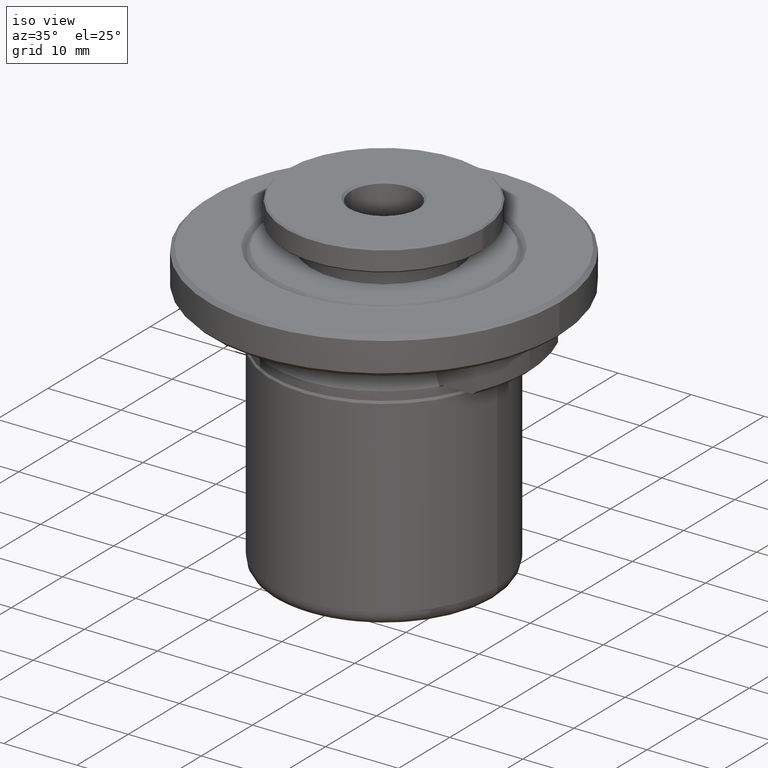
[diagram: clean part render]
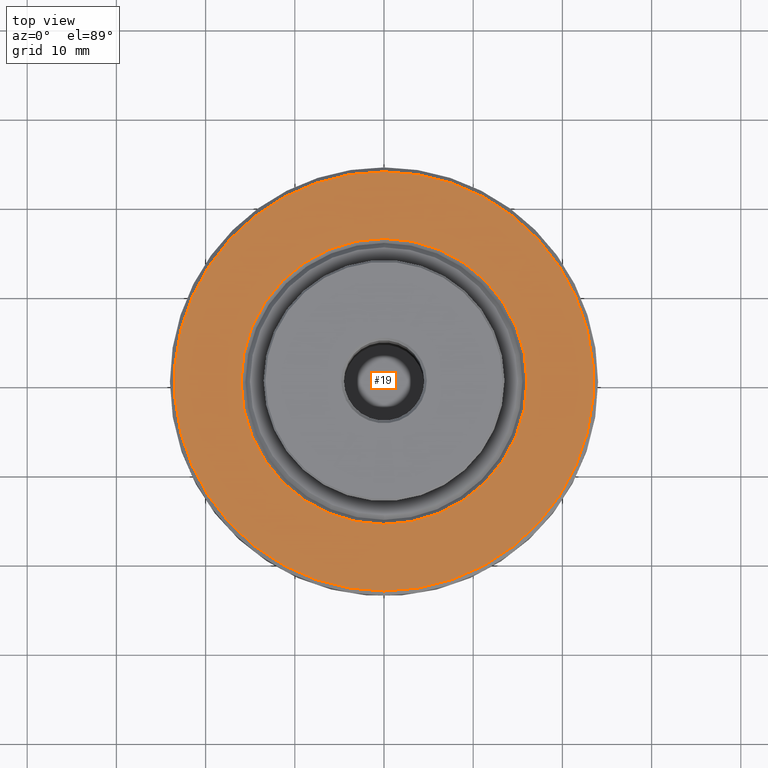
[diagram: tour spotlight — one face highlighted and labeled with its STEP entity id]
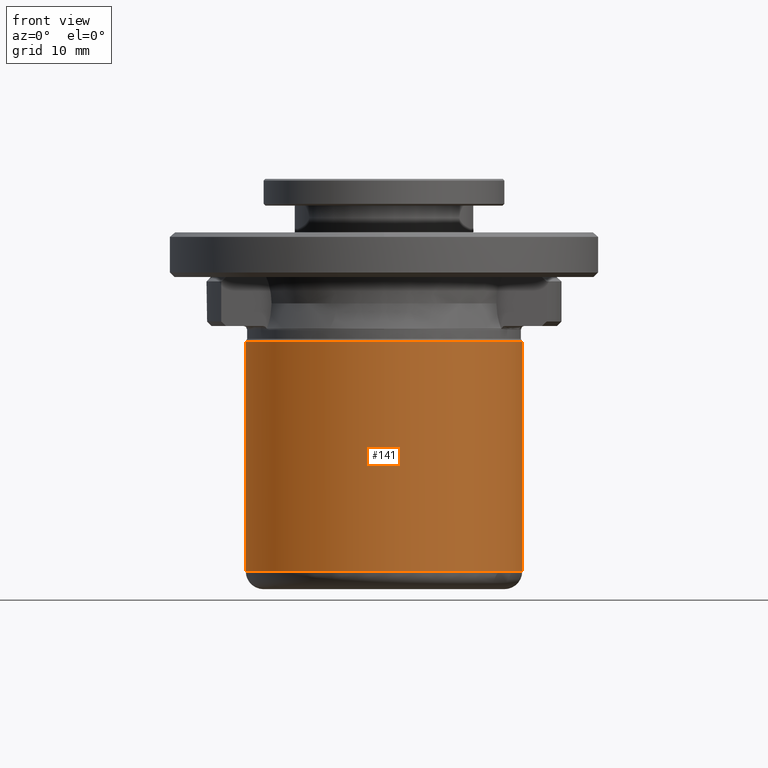
[diagram: tour spotlight — one face highlighted and labeled with its STEP entity id]
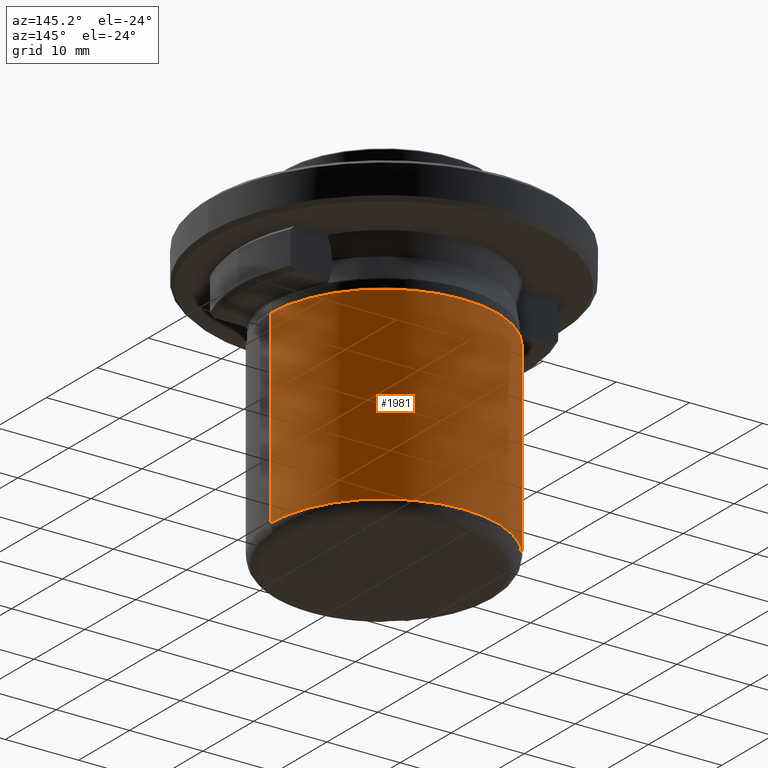
[diagram: tour spotlight — one face highlighted and labeled with its STEP entity id]
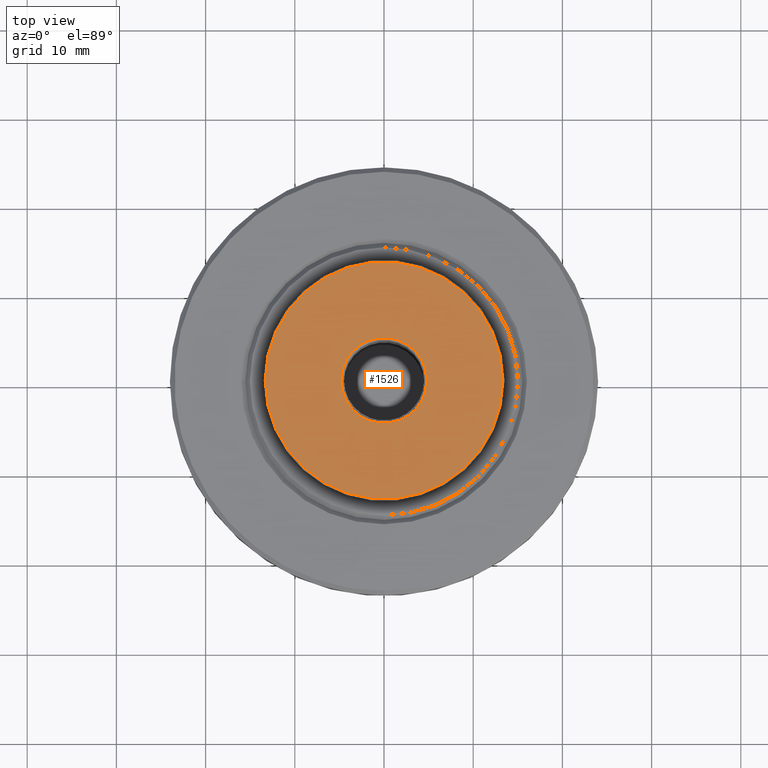
[diagram: tour spotlight — one face highlighted and labeled with its STEP entity id]
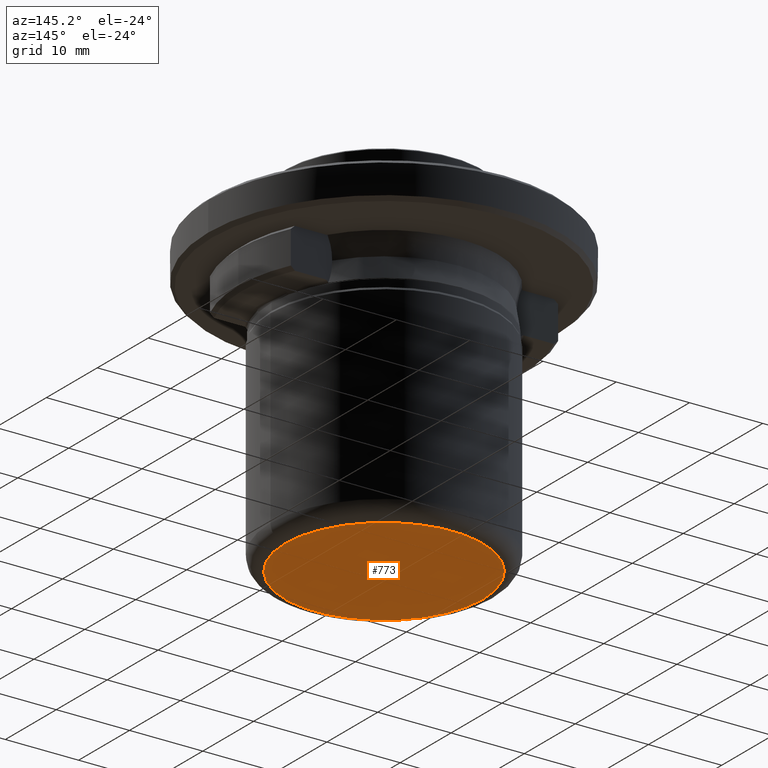
[diagram: tour spotlight — one face highlighted and labeled with its STEP entity id]
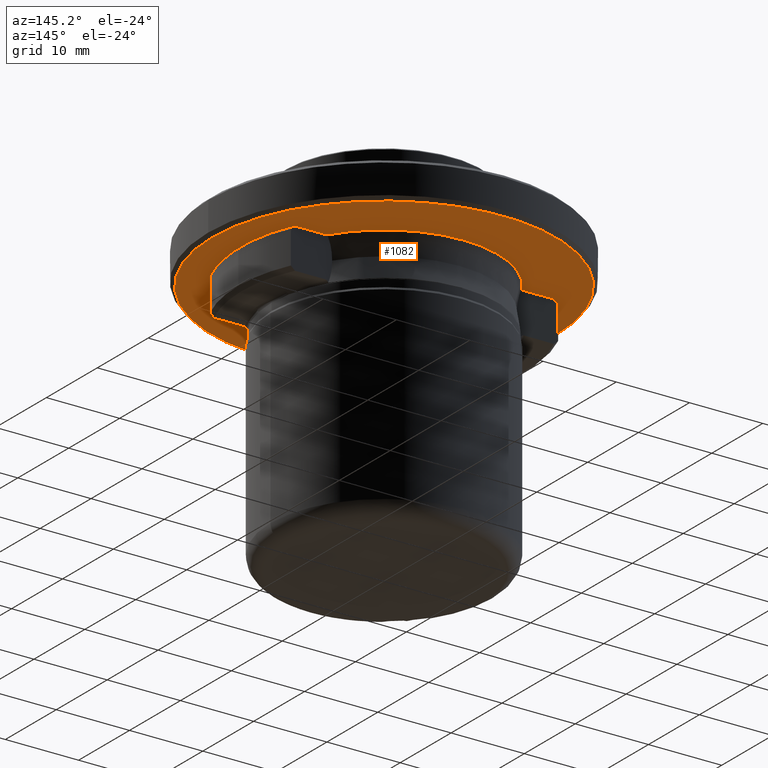
[diagram: tour spotlight — one face highlighted and labeled with its STEP entity id]
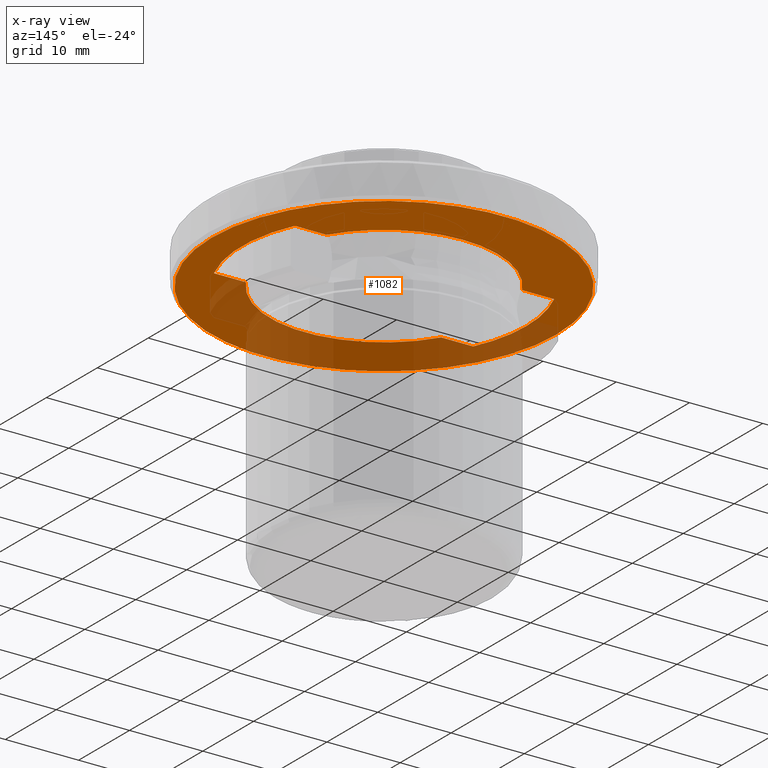
[diagram: x-ray of the same camera — body ghosted, this tour face saturated]
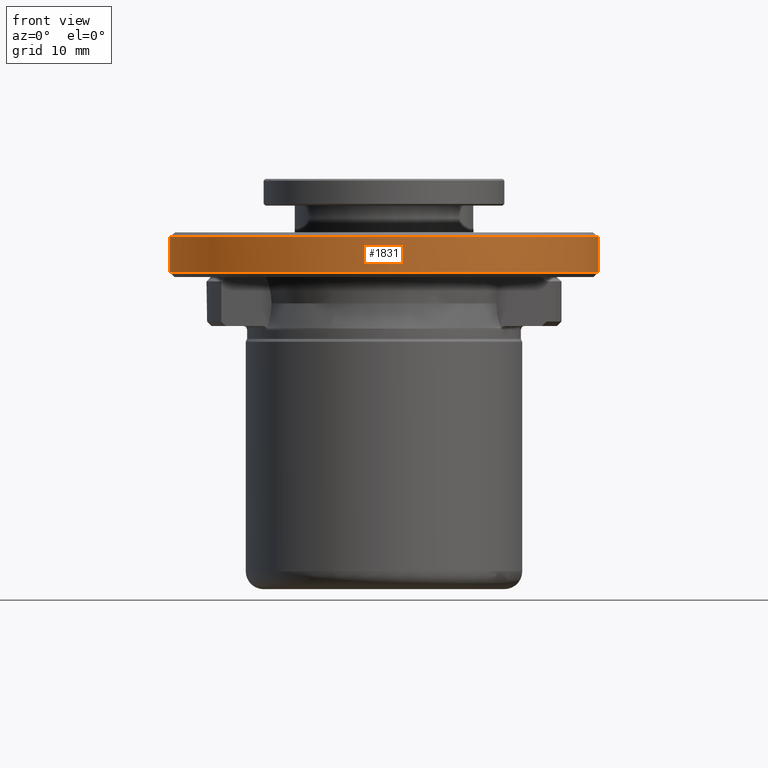
[diagram: tour spotlight — one face highlighted and labeled with its STEP entity id]
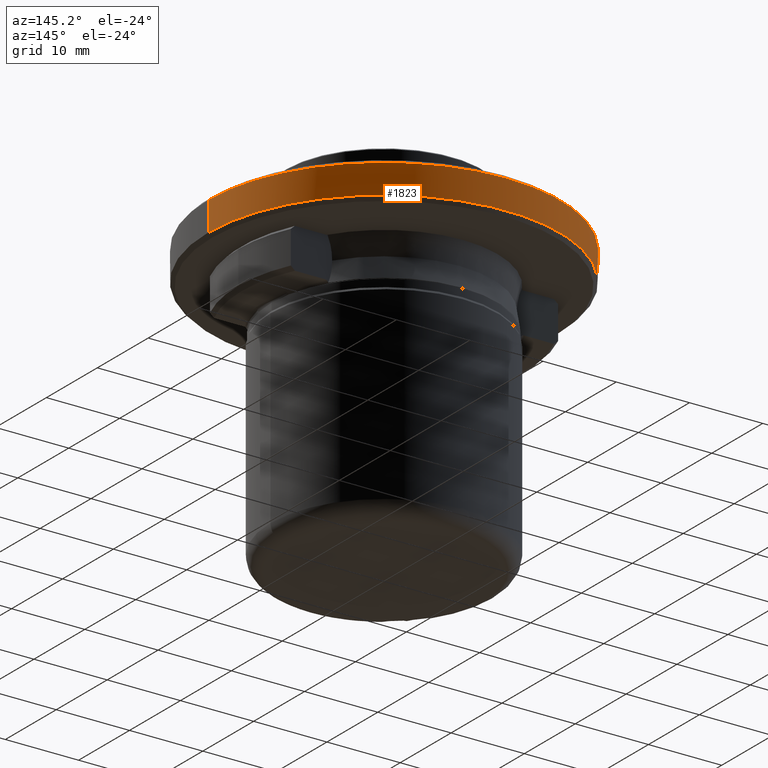
[diagram: tour spotlight — one face highlighted and labeled with its STEP entity id]
A machine part: a face-by-face anatomy tour. The part has 61 B-rep faces; the first image is the clean iso view, then the 8 largest visible faces are spotlighted one at a time (largest first), each with its STEP entity span.

Face 1 — top view, entity #19. In plain terms, the highlighted planar face has unit normal (0, 0, 1).
Definition (entity closure, byte-faithful):
#19 = ADVANCED_FACE ( 'NONE', ( #1107, #1920 ), #830, .T. ) ;
#40 = CIRCLE ( 'NONE', #1694, 16.02500000000004500 ) ;
#46 = DIRECTION ( 'NONE',  ( -0.0000000000000000000, 0.0000000000000000000, -1.000000000000000000 ) ) ;
#67 = VERTEX_POINT ( 'NONE', #400 ) ;
#125 = CIRCLE ( 'NONE', #1824, 16.02500000000004500 ) ;
#135 = ORIENTED_EDGE ( 'NONE', *, *, #237, .T. ) ;
#178 = CARTESIAN_POINT ( 'NONE',  ( -23.78199999999999600, -23.78199999999999600, 12.43848561500000100 ) ) ;
#237 = EDGE_CURVE ( 'NONE', #380, #67, #519, .T. ) ;
#238 = ORIENTED_EDGE ( 'NONE', *, *, #1051, .T. ) ;
#275 = ORIENTED_EDGE ( 'NONE', *, *, #1252, .T. ) ;
#320 = CARTESIAN_POINT ( 'NONE',  ( 0.0000000000000000000, 0.0000000000000000000, 12.43848561500005100 ) ) ;
#380 = VERTEX_POINT ( 'NONE', #1878 ) ;
#400 = CARTESIAN_POINT ( 'NONE',  ( 0.0000000000000000000, 23.49999999999995000, 12.43848561500005100 ) ) ;
#519 = CIRCLE ( 'NONE', #916, 23.49999999999995000 ) ;
#538 = DIRECTION ( 'NONE',  ( 1.000000000000000000, 0.0000000000000000000, 0.0000000000000000000 ) ) ;
#543 = EDGE_LOOP ( 'NONE', ( #275, #135 ) ) ;
#548 = EDGE_CURVE ( 'NONE', #669, #616, #40, .T. ) ;
#616 = VERTEX_POINT ( 'NONE', #1738 ) ;
#650 = CIRCLE ( 'NONE', #1886, 23.49999999999995000 ) ;
#661 = CARTESIAN_POINT ( 'NONE',  ( 0.0000000000000000000, 1.792753937581369100E-030, 12.43848561500005100 ) ) ;
#669 = VERTEX_POINT ( 'NONE', #1142 ) ;
#804 = EDGE_LOOP ( 'NONE', ( #238, #1928 ) ) ;
#811 = DIRECTION ( 'NONE',  ( -0.0000000000000000000, 3.690901012716610800E-017, 1.000000000000000000 ) ) ;
#830 = PLANE ( 'NONE',  #1045 ) ;
#916 = AXIS2_PLACEMENT_3D ( 'NONE', #661, #811, #1102 ) ;
#951 = CARTESIAN_POINT ( 'NONE',  ( 0.0000000000000000000, 0.0000000000000000000, 12.43848561500005100 ) ) ;
#1040 = DIRECTION ( 'NONE',  ( 0.0000000000000000000, 1.000000000000000000, 0.0000000000000000000 ) ) ;
#1045 = AXIS2_PLACEMENT_3D ( 'NONE', #178, #1383, #538 ) ;
#1051 = EDGE_CURVE ( 'NONE', #616, #669, #125, .T. ) ;
#1102 = DIRECTION ( 'NONE',  ( 0.0000000000000000000, 1.000000000000000000, 0.0000000000000000000 ) ) ;
#1107 = FACE_BOUND ( 'NONE', #804, .T. ) ;
#1142 = CARTESIAN_POINT ( 'NONE',  ( -16.02500000000004500, 1.962496495633639600E-015, 12.43848561500005100 ) ) ;
#1252 = EDGE_CURVE ( 'NONE', #67, #380, #650, .T. ) ;
#1255 = DIRECTION ( 'NONE',  ( 1.000000000000000000, 0.0000000000000000000, 0.0000000000000000000 ) ) ;
#1334 = DIRECTION ( 'NONE',  ( -0.0000000000000000000, 0.0000000000000000000, -1.000000000000000000 ) ) ;
#1359 = CARTESIAN_POINT ( 'NONE',  ( 0.0000000000000000000, 1.792753937581369100E-030, 12.43848561500005100 ) ) ;
#1383 = DIRECTION ( 'NONE',  ( 0.0000000000000000000, 0.0000000000000000000, 1.000000000000000000 ) ) ;
#1539 = DIRECTION ( 'NONE',  ( 1.000000000000000000, 0.0000000000000000000, 0.0000000000000000000 ) ) ;
#1661 = DIRECTION ( 'NONE',  ( -0.0000000000000000000, 3.690901012716610800E-017, 1.000000000000000000 ) ) ;
#1694 = AXIS2_PLACEMENT_3D ( 'NONE', #320, #1334, #1539 ) ;
#1738 = CARTESIAN_POINT ( 'NONE',  ( 16.02500000000004500, 0.0000000000000000000, 12.43848561500005100 ) ) ;
#1824 = AXIS2_PLACEMENT_3D ( 'NONE', #951, #46, #1255 ) ;
#1878 = CARTESIAN_POINT ( 'NONE',  ( 2.908536147974961000E-015, -23.49999999999995000, 12.43848561500005100 ) ) ;
#1886 = AXIS2_PLACEMENT_3D ( 'NONE', #1359, #1661, #1040 ) ;
#1920 = FACE_OUTER_BOUND ( 'NONE', #543, .T. ) ;
#1928 = ORIENTED_EDGE ( 'NONE', *, *, #548, .T. ) ;

Face 2 — front view, entity #141. In plain terms, the highlighted cylindrical surface (partial cylindrical patch) has radius 15.5 mm, axis along (0, -0, 1).
Definition (entity closure, byte-faithful):
#68 = VERTEX_POINT ( 'NONE', #233 ) ;
#77 = DIRECTION ( 'NONE',  ( 0.0000000000000000000, -0.0000000000000000000, 1.000000000000000000 ) ) ;
#98 = AXIS2_PLACEMENT_3D ( 'NONE', #1897, #785, #1079 ) ;
#141 = ADVANCED_FACE ( 'NONE', ( #1776 ), #564, .T. ) ;
#233 = CARTESIAN_POINT ( 'NONE',  ( 15.50000000000000000, 0.0000000000000000000, 0.1784856150000013700 ) ) ;
#236 = CARTESIAN_POINT ( 'NONE',  ( 15.50000000000000000, 0.0000000000000000000, -25.56151438499999900 ) ) ;
#311 = CARTESIAN_POINT ( 'NONE',  ( 0.0000000000000000000, 0.0000000000000000000, -25.56151438499999900 ) ) ;
#421 = LINE ( 'NONE', #540, #1183 ) ;
#430 = EDGE_CURVE ( 'NONE', #486, #68, #1341, .T. ) ;
#436 = ORIENTED_EDGE ( 'NONE', *, *, #1881, .T. ) ;
#465 = DIRECTION ( 'NONE',  ( 1.000000000000000000, 0.0000000000000000000, 0.0000000000000000000 ) ) ;
#486 = VERTEX_POINT ( 'NONE', #236 ) ;
#532 = AXIS2_PLACEMENT_3D ( 'NONE', #697, #615, #765 ) ;
#540 = CARTESIAN_POINT ( 'NONE',  ( -15.50000000000000000, 1.898202538678397600E-015, -18.26487427900000100 ) ) ;
#547 = AXIS2_PLACEMENT_3D ( 'NONE', #311, #1367, #465 ) ;
#564 = CYLINDRICAL_SURFACE ( 'NONE', #98, 15.50000000000000000 ) ;
#615 = DIRECTION ( 'NONE',  ( 0.0000000000000000000, 0.0000000000000000000, -1.000000000000000000 ) ) ;
#638 = VERTEX_POINT ( 'NONE', #1790 ) ;
#663 = EDGE_CURVE ( 'NONE', #68, #638, #696, .T. ) ;
#696 = CIRCLE ( 'NONE', #532, 15.50000000000000000 ) ;
#697 = CARTESIAN_POINT ( 'NONE',  ( 0.0000000000000000000, 0.0000000000000000000, 0.1784856150000013700 ) ) ;
#752 = ORIENTED_EDGE ( 'NONE', *, *, #663, .T. ) ;
#765 = DIRECTION ( 'NONE',  ( -1.000000000000000000, 0.0000000000000000000, -8.743565907141165300E-017 ) ) ;
#785 = DIRECTION ( 'NONE',  ( 0.0000000000000000000, -0.0000000000000000000, 1.000000000000000000 ) ) ;
#793 = EDGE_LOOP ( 'NONE', ( #829, #436, #841, #752 ) ) ;
#829 = ORIENTED_EDGE ( 'NONE', *, *, #883, .F. ) ;
#841 = ORIENTED_EDGE ( 'NONE', *, *, #430, .T. ) ;
#883 = EDGE_CURVE ( 'NONE', #1931, #638, #421, .T. ) ;
#885 = CARTESIAN_POINT ( 'NONE',  ( 15.50000000000000000, 0.0000000000000000000, -18.26487427900000100 ) ) ;
#942 = VECTOR ( 'NONE', #1422, 1000.000000000000000 ) ;
#1074 = CARTESIAN_POINT ( 'NONE',  ( -15.50000000000000000, 1.898202538678397600E-015, -25.56151438499999900 ) ) ;
#1079 = DIRECTION ( 'NONE',  ( 1.000000000000000000, 0.0000000000000000000, 0.0000000000000000000 ) ) ;
#1183 = VECTOR ( 'NONE', #77, 1000.000000000000000 ) ;
#1341 = LINE ( 'NONE', #885, #942 ) ;
#1367 = DIRECTION ( 'NONE',  ( 0.0000000000000000000, 0.0000000000000000000, 1.000000000000000000 ) ) ;
#1422 = DIRECTION ( 'NONE',  ( 0.0000000000000000000, -0.0000000000000000000, 1.000000000000000000 ) ) ;
#1655 = CIRCLE ( 'NONE', #547, 15.50000000000000000 ) ;
#1776 = FACE_OUTER_BOUND ( 'NONE', #793, .T. ) ;
#1790 = CARTESIAN_POINT ( 'NONE',  ( -15.50000000000000000, 1.898202538678397600E-015, 0.1784856150000013700 ) ) ;
#1881 = EDGE_CURVE ( 'NONE', #1931, #486, #1655, .T. ) ;
#1897 = CARTESIAN_POINT ( 'NONE',  ( 0.0000000000000000000, 0.0000000000000000000, -18.26487427900000100 ) ) ;
#1931 = VERTEX_POINT ( 'NONE', #1074 ) ;

Face 3 — auxiliary view, entity #1981. In plain terms, the highlighted cylindrical surface (partial cylindrical patch) has radius 15.5 mm, axis along (0, -0, 1).
Definition (entity closure, byte-faithful):
#68 = VERTEX_POINT ( 'NONE', #233 ) ;
#77 = DIRECTION ( 'NONE',  ( 0.0000000000000000000, -0.0000000000000000000, 1.000000000000000000 ) ) ;
#227 = CARTESIAN_POINT ( 'NONE',  ( 0.0000000000000000000, 0.0000000000000000000, -25.56151438499999900 ) ) ;
#233 = CARTESIAN_POINT ( 'NONE',  ( 15.50000000000000000, 0.0000000000000000000, 0.1784856150000013700 ) ) ;
#236 = CARTESIAN_POINT ( 'NONE',  ( 15.50000000000000000, 0.0000000000000000000, -25.56151438499999900 ) ) ;
#289 = AXIS2_PLACEMENT_3D ( 'NONE', #431, #1299, #1324 ) ;
#324 = DIRECTION ( 'NONE',  ( 1.000000000000000000, 0.0000000000000000000, 0.0000000000000000000 ) ) ;
#353 = ORIENTED_EDGE ( 'NONE', *, *, #883, .T. ) ;
#421 = LINE ( 'NONE', #540, #1183 ) ;
#430 = EDGE_CURVE ( 'NONE', #486, #68, #1341, .T. ) ;
#431 = CARTESIAN_POINT ( 'NONE',  ( 0.0000000000000000000, 0.0000000000000000000, 0.1784856150000013700 ) ) ;
#480 = CARTESIAN_POINT ( 'NONE',  ( 0.0000000000000000000, 0.0000000000000000000, -18.26487427900000100 ) ) ;
#486 = VERTEX_POINT ( 'NONE', #236 ) ;
#540 = CARTESIAN_POINT ( 'NONE',  ( -15.50000000000000000, 1.898202538678397600E-015, -18.26487427900000100 ) ) ;
#638 = VERTEX_POINT ( 'NONE', #1790 ) ;
#727 = ORIENTED_EDGE ( 'NONE', *, *, #1034, .T. ) ;
#743 = CYLINDRICAL_SURFACE ( 'NONE', #1260, 15.50000000000000000 ) ;
#774 = DIRECTION ( 'NONE',  ( 0.0000000000000000000, -0.0000000000000000000, 1.000000000000000000 ) ) ;
#865 = DIRECTION ( 'NONE',  ( 0.0000000000000000000, 0.0000000000000000000, 1.000000000000000000 ) ) ;
#883 = EDGE_CURVE ( 'NONE', #1931, #638, #421, .T. ) ;
#885 = CARTESIAN_POINT ( 'NONE',  ( 15.50000000000000000, 0.0000000000000000000, -18.26487427900000100 ) ) ;
#903 = ORIENTED_EDGE ( 'NONE', *, *, #910, .T. ) ;
#910 = EDGE_CURVE ( 'NONE', #638, #68, #1077, .T. ) ;
#942 = VECTOR ( 'NONE', #1422, 1000.000000000000000 ) ;
#1034 = EDGE_CURVE ( 'NONE', #486, #1931, #1388, .T. ) ;
#1074 = CARTESIAN_POINT ( 'NONE',  ( -15.50000000000000000, 1.898202538678397600E-015, -25.56151438499999900 ) ) ;
#1077 = CIRCLE ( 'NONE', #289, 15.50000000000000000 ) ;
#1183 = VECTOR ( 'NONE', #77, 1000.000000000000000 ) ;
#1200 = FACE_OUTER_BOUND ( 'NONE', #1588, .T. ) ;
#1260 = AXIS2_PLACEMENT_3D ( 'NONE', #480, #774, #324 ) ;
#1299 = DIRECTION ( 'NONE',  ( 0.0000000000000000000, 0.0000000000000000000, -1.000000000000000000 ) ) ;
#1324 = DIRECTION ( 'NONE',  ( -1.000000000000000000, 0.0000000000000000000, -8.743565907141165300E-017 ) ) ;
#1341 = LINE ( 'NONE', #885, #942 ) ;
#1388 = CIRCLE ( 'NONE', #1618, 15.50000000000000000 ) ;
#1422 = DIRECTION ( 'NONE',  ( 0.0000000000000000000, -0.0000000000000000000, 1.000000000000000000 ) ) ;
#1588 = EDGE_LOOP ( 'NONE', ( #727, #353, #903, #1879 ) ) ;
#1618 = AXIS2_PLACEMENT_3D ( 'NONE', #227, #865, #1732 ) ;
#1732 = DIRECTION ( 'NONE',  ( 1.000000000000000000, 0.0000000000000000000, 0.0000000000000000000 ) ) ;
#1790 = CARTESIAN_POINT ( 'NONE',  ( -15.50000000000000000, 1.898202538678397600E-015, 0.1784856150000013700 ) ) ;
#1879 = ORIENTED_EDGE ( 'NONE', *, *, #430, .F. ) ;
#1931 = VERTEX_POINT ( 'NONE', #1074 ) ;
#1981 = ADVANCED_FACE ( 'NONE', ( #1200 ), #743, .T. ) ;

Face 4 — top view, entity #1526. In plain terms, the highlighted planar face has unit normal (0, 0, 1).
Definition (entity closure, byte-faithful):
#24 = CARTESIAN_POINT ( 'NONE',  ( 4.800000001441873100, 0.0000000000000000000, 18.43848561500000100 ) ) ;
#50 = CARTESIAN_POINT ( 'NONE',  ( -13.29999999999999900, 0.0000000000000000000, 18.43848561499994400 ) ) ;
#90 = CARTESIAN_POINT ( 'NONE',  ( 0.0000000000000000000, 0.0000000000000000000, 18.43848561500000100 ) ) ;
#119 = EDGE_CURVE ( 'NONE', #660, #384, #1826, .T. ) ;
#154 = CIRCLE ( 'NONE', #1657, 13.29999999999999900 ) ;
#157 = CARTESIAN_POINT ( 'NONE',  ( 13.29999999999999900, 1.641026710857453300E-015, 18.43848561499994400 ) ) ;
#273 = FACE_BOUND ( 'NONE', #659, .T. ) ;
#309 = PLANE ( 'NONE',  #684 ) ;
#384 = VERTEX_POINT ( 'NONE', #50 ) ;
#550 = DIRECTION ( 'NONE',  ( 1.000000000000000000, 0.0000000000000000000, 0.0000000000000000000 ) ) ;
#589 = ORIENTED_EDGE ( 'NONE', *, *, #1460, .T. ) ;
#601 = CARTESIAN_POINT ( 'NONE',  ( 0.0000000000000000000, 0.0000000000000000000, 18.43848561499994400 ) ) ;
#641 = DIRECTION ( 'NONE',  ( -0.0000000000000000000, -0.0000000000000000000, -1.000000000000000000 ) ) ;
#659 = EDGE_LOOP ( 'NONE', ( #589, #1763 ) ) ;
#660 = VERTEX_POINT ( 'NONE', #157 ) ;
#672 = CARTESIAN_POINT ( 'NONE',  ( -4.800000001441873100, 5.878304637673080500E-016, 18.43848561500000100 ) ) ;
#684 = AXIS2_PLACEMENT_3D ( 'NONE', #1926, #1695, #550 ) ;
#689 = DIRECTION ( 'NONE',  ( 1.000000000000000000, 0.0000000000000000000, 0.0000000000000000000 ) ) ;
#718 = FACE_OUTER_BOUND ( 'NONE', #1683, .T. ) ;
#728 = DIRECTION ( 'NONE',  ( 1.000000000000000000, 0.0000000000000000000, 0.0000000000000000000 ) ) ;
#786 = EDGE_CURVE ( 'NONE', #384, #660, #154, .T. ) ;
#790 = CARTESIAN_POINT ( 'NONE',  ( 0.0000000000000000000, 0.0000000000000000000, 18.43848561500000100 ) ) ;
#863 = CIRCLE ( 'NONE', #1234, 4.800000001441873100 ) ;
#991 = DIRECTION ( 'NONE',  ( 1.000000000000000000, 0.0000000000000000000, 0.0000000000000000000 ) ) ;
#996 = VERTEX_POINT ( 'NONE', #24 ) ;
#1026 = EDGE_CURVE ( 'NONE', #1347, #996, #1746, .T. ) ;
#1042 = CARTESIAN_POINT ( 'NONE',  ( 0.0000000000000000000, 0.0000000000000000000, 18.43848561499994400 ) ) ;
#1207 = AXIS2_PLACEMENT_3D ( 'NONE', #790, #641, #728 ) ;
#1234 = AXIS2_PLACEMENT_3D ( 'NONE', #90, #1777, #1303 ) ;
#1303 = DIRECTION ( 'NONE',  ( 1.000000000000000000, 0.0000000000000000000, 0.0000000000000000000 ) ) ;
#1333 = ORIENTED_EDGE ( 'NONE', *, *, #119, .T. ) ;
#1347 = VERTEX_POINT ( 'NONE', #672 ) ;
#1430 = DIRECTION ( 'NONE',  ( -0.0000000000000000000, -0.0000000000000000000, 1.000000000000000000 ) ) ;
#1460 = EDGE_CURVE ( 'NONE', #996, #1347, #863, .T. ) ;
#1526 = ADVANCED_FACE ( 'NONE', ( #273, #718 ), #309, .T. ) ;
#1611 = DIRECTION ( 'NONE',  ( -0.0000000000000000000, -0.0000000000000000000, 1.000000000000000000 ) ) ;
#1657 = AXIS2_PLACEMENT_3D ( 'NONE', #601, #1611, #991 ) ;
#1665 = AXIS2_PLACEMENT_3D ( 'NONE', #1042, #1430, #689 ) ;
#1683 = EDGE_LOOP ( 'NONE', ( #1819, #1333 ) ) ;
#1695 = DIRECTION ( 'NONE',  ( 0.0000000000000000000, 0.0000000000000000000, 1.000000000000000000 ) ) ;
#1746 = CIRCLE ( 'NONE', #1207, 4.800000001441873100 ) ;
#1763 = ORIENTED_EDGE ( 'NONE', *, *, #1026, .T. ) ;
#1777 = DIRECTION ( 'NONE',  ( -0.0000000000000000000, -0.0000000000000000000, -1.000000000000000000 ) ) ;
#1819 = ORIENTED_EDGE ( 'NONE', *, *, #786, .T. ) ;
#1826 = CIRCLE ( 'NONE', #1665, 13.29999999999999900 ) ;
#1926 = CARTESIAN_POINT ( 'NONE',  ( -10.57540000000000200, -10.57540000000000200, 18.43848561500000100 ) ) ;

Face 5 — auxiliary view, entity #773. In plain terms, the highlighted planar face has unit normal (0, 0, 1).
Definition (entity closure, byte-faithful):
#53 = VERTEX_POINT ( 'NONE', #872 ) ;
#110 = CIRCLE ( 'NONE', #813, 13.50000000000000000 ) ;
#133 = ORIENTED_EDGE ( 'NONE', *, *, #229, .T. ) ;
#158 = EDGE_CURVE ( 'NONE', #1976, #53, #1322, .T. ) ;
#229 = EDGE_CURVE ( 'NONE', #53, #1976, #110, .T. ) ;
#292 = PLANE ( 'NONE',  #1553 ) ;
#523 = ORIENTED_EDGE ( 'NONE', *, *, #158, .T. ) ;
#528 = DIRECTION ( 'NONE',  ( 1.000000000000000000, 0.0000000000000000000, 0.0000000000000000000 ) ) ;
#773 = ADVANCED_FACE ( 'NONE', ( #1364 ), #292, .F. ) ;
#813 = AXIS2_PLACEMENT_3D ( 'NONE', #1406, #1581, #1725 ) ;
#872 = CARTESIAN_POINT ( 'NONE',  ( -13.50000000000000000, 1.775737858763662000E-015, -27.56151438499999900 ) ) ;
#1105 = DIRECTION ( 'NONE',  ( -0.0000000000000000000, -0.0000000000000000000, -1.000000000000000000 ) ) ;
#1216 = CARTESIAN_POINT ( 'NONE',  ( -13.51019999999999900, -13.51019999999999900, -27.56151438499999900 ) ) ;
#1322 = CIRCLE ( 'NONE', #1873, 13.50000000000000000 ) ;
#1350 = EDGE_LOOP ( 'NONE', ( #523, #133 ) ) ;
#1364 = FACE_OUTER_BOUND ( 'NONE', #1350, .T. ) ;
#1406 = CARTESIAN_POINT ( 'NONE',  ( 0.0000000000000000000, 0.0000000000000000000, -27.56151438499999900 ) ) ;
#1543 = CARTESIAN_POINT ( 'NONE',  ( 13.50000000000000000, 0.0000000000000000000, -27.56151438499999900 ) ) ;
#1553 = AXIS2_PLACEMENT_3D ( 'NONE', #1216, #1768, #528 ) ;
#1560 = DIRECTION ( 'NONE',  ( 1.000000000000000000, 0.0000000000000000000, 0.0000000000000000000 ) ) ;
#1581 = DIRECTION ( 'NONE',  ( -0.0000000000000000000, -0.0000000000000000000, -1.000000000000000000 ) ) ;
#1725 = DIRECTION ( 'NONE',  ( 1.000000000000000000, 0.0000000000000000000, 0.0000000000000000000 ) ) ;
#1768 = DIRECTION ( 'NONE',  ( 0.0000000000000000000, 0.0000000000000000000, 1.000000000000000000 ) ) ;
#1862 = CARTESIAN_POINT ( 'NONE',  ( 0.0000000000000000000, 0.0000000000000000000, -27.56151438499999900 ) ) ;
#1873 = AXIS2_PLACEMENT_3D ( 'NONE', #1862, #1105, #1560 ) ;
#1976 = VERTEX_POINT ( 'NONE', #1543 ) ;

Face 6 — auxiliary view, entity #1082. An x-ray twin of the same camera follows (body ghosted, this face saturated) — the face is partly hidden behind the body. In plain terms, the highlighted planar face has unit normal (0, 0, -1).
Definition (entity closure, byte-faithful):
#27 = DIRECTION ( 'NONE',  ( 0.0000000000000000000, 1.000000000000000000, 0.0000000000000000000 ) ) ;
#28 = VERTEX_POINT ( 'NONE', #1628 ) ;
#60 = CIRCLE ( 'NONE', #1962, 19.39999999999995600 ) ;
#62 = EDGE_CURVE ( 'NONE', #478, #145, #1461, .T. ) ;
#75 = CIRCLE ( 'NONE', #463, 23.50000000000004600 ) ;
#80 = CARTESIAN_POINT ( 'NONE',  ( 0.0000000000000000000, 15.52500000000000000, 7.438485615000000300 ) ) ;
#104 = CARTESIAN_POINT ( 'NONE',  ( -19.39999999999995600, 0.0000000000000000000, 7.438485615000045600 ) ) ;
#124 = LINE ( 'NONE', #1599, #1286 ) ;
#127 = VERTEX_POINT ( 'NONE', #1054 ) ;
#134 = ORIENTED_EDGE ( 'NONE', *, *, #1292, .T. ) ;
#136 = AXIS2_PLACEMENT_3D ( 'NONE', #1680, #759, #1836 ) ;
#145 = VERTEX_POINT ( 'NONE', #268 ) ;
#147 = CIRCLE ( 'NONE', #426, 15.52500000000000000 ) ;
#245 = ORIENTED_EDGE ( 'NONE', *, *, #675, .T. ) ;
#263 = VERTEX_POINT ( 'NONE', #1403 ) ;
#268 = CARTESIAN_POINT ( 'NONE',  ( -13.33503373845069900, 7.950000010476004200, 7.438485615000000300 ) ) ;
#284 = ORIENTED_EDGE ( 'NONE', *, *, #1720, .T. ) ;
#315 = DIRECTION ( 'NONE',  ( -1.000000000000000000, 0.0000000000000000000, 0.0000000000000000000 ) ) ;
#317 = ORIENTED_EDGE ( 'NONE', *, *, #1314, .T. ) ;
#318 = AXIS2_PLACEMENT_3D ( 'NONE', #1594, #529, #546 ) ;
#322 = CARTESIAN_POINT ( 'NONE',  ( 23.78199999999999600, -23.78199999999999600, 7.438485615000000300 ) ) ;
#426 = AXIS2_PLACEMENT_3D ( 'NONE', #551, #994, #1002 ) ;
#441 = ORIENTED_EDGE ( 'NONE', *, *, #1917, .F. ) ;
#442 = CIRCLE ( 'NONE', #136, 19.40000000000000200 ) ;
#463 = AXIS2_PLACEMENT_3D ( 'NONE', #1242, #1699, #1390 ) ;
#478 = VERTEX_POINT ( 'NONE', #80 ) ;
#488 = FACE_BOUND ( 'NONE', #776, .T. ) ;
#494 = CARTESIAN_POINT ( 'NONE',  ( 0.0000000000000000000, 0.0000000000000000000, 7.438485615000045600 ) ) ;
#529 = DIRECTION ( 'NONE',  ( -0.0000000000000000000, 0.0000000000000000000, -1.000000000000000000 ) ) ;
#541 = ORIENTED_EDGE ( 'NONE', *, *, #1882, .T. ) ;
#546 = DIRECTION ( 'NONE',  ( 1.000000000000000000, 0.0000000000000000000, 0.0000000000000000000 ) ) ;
#551 = CARTESIAN_POINT ( 'NONE',  ( 0.0000000000000000000, -9.367969949823169900E-018, 7.438485615000000300 ) ) ;
#552 = DIRECTION ( 'NONE',  ( -0.0000000000000000000, -0.0000000000000000000, 1.000000000000000000 ) ) ;
#585 = CARTESIAN_POINT ( 'NONE',  ( -17.69625667337379900, 7.950000020952010100, 7.438485615000000300 ) ) ;
#621 = DIRECTION ( 'NONE',  ( 0.0000000000000000000, 0.0000000000000000000, -1.000000000000000000 ) ) ;
#622 = CARTESIAN_POINT ( 'NONE',  ( 0.0000000000000000000, -9.367969949823182200E-018, 7.438485615000000300 ) ) ;
#635 = AXIS2_PLACEMENT_3D ( 'NONE', #494, #1865, #834 ) ;
#654 = CIRCLE ( 'NONE', #635, 19.39999999999995600 ) ;
#675 = EDGE_CURVE ( 'NONE', #1806, #1710, #654, .T. ) ;
#695 = VERTEX_POINT ( 'NONE', #1289 ) ;
#759 = DIRECTION ( 'NONE',  ( -0.0000000000000000000, -0.0000000000000000000, 1.000000000000000000 ) ) ;
#764 = ORIENTED_EDGE ( 'NONE', *, *, #62, .T. ) ;
#768 = DIRECTION ( 'NONE',  ( 0.0000000000000000000, 1.000000000000000000, 0.0000000000000000000 ) ) ;
#776 = EDGE_LOOP ( 'NONE', ( #927, #541, #1574, #317, #764, #284, #245, #1048, #1374, #441 ) ) ;
#794 = DIRECTION ( 'NONE',  ( 1.000000000000000000, -0.0000000000000000000, -0.0000000000000000000 ) ) ;
#806 = DIRECTION ( 'NONE',  ( -1.000000000000000000, 0.0000000000000000000, 0.0000000000000000000 ) ) ;
#834 = DIRECTION ( 'NONE',  ( -1.000000000000000000, -1.776356839400250500E-015, 0.0000000000000000000 ) ) ;
#842 = CIRCLE ( 'NONE', #853, 15.52500000000000000 ) ;
#852 = EDGE_CURVE ( 'NONE', #1710, #1033, #60, .T. ) ;
#853 = AXIS2_PLACEMENT_3D ( 'NONE', #622, #1685, #768 ) ;
#927 = ORIENTED_EDGE ( 'NONE', *, *, #1650, .T. ) ;
#932 = DIRECTION ( 'NONE',  ( 1.000000000000000000, -0.0000000000000000000, -0.0000000000000000000 ) ) ;
#957 = VECTOR ( 'NONE', #806, 1000.000000000000000 ) ;
#965 = AXIS2_PLACEMENT_3D ( 'NONE', #322, #621, #315 ) ;
#994 = DIRECTION ( 'NONE',  ( -0.0000000000000000000, 2.793435549076984100E-017, 1.000000000000000000 ) ) ;
#1002 = DIRECTION ( 'NONE',  ( 0.0000000000000000000, 1.000000000000000000, 0.0000000000000000000 ) ) ;
#1006 = CARTESIAN_POINT ( 'NONE',  ( -23.50000000000004600, 2.908536147974966900E-015, 7.438485615000045600 ) ) ;
#1033 = VERTEX_POINT ( 'NONE', #1330 ) ;
#1048 = ORIENTED_EDGE ( 'NONE', *, *, #852, .T. ) ;
#1054 = CARTESIAN_POINT ( 'NONE',  ( -13.33503374469622000, -7.950000000000000200, 7.438485616000773100 ) ) ;
#1069 = EDGE_CURVE ( 'NONE', #1280, #1115, #75, .T. ) ;
#1082 = ADVANCED_FACE ( 'NONE', ( #488, #1602 ), #1691, .T. ) ;
#1115 = VERTEX_POINT ( 'NONE', #1965 ) ;
#1242 = CARTESIAN_POINT ( 'NONE',  ( 0.0000000000000000000, 0.0000000000000000000, 7.438485615000045600 ) ) ;
#1257 = AXIS2_PLACEMENT_3D ( 'NONE', #1905, #1587, #27 ) ;
#1278 = EDGE_CURVE ( 'NONE', #263, #28, #1767, .T. ) ;
#1280 = VERTEX_POINT ( 'NONE', #1006 ) ;
#1286 = VECTOR ( 'NONE', #932, 1000.000000000000000 ) ;
#1289 = CARTESIAN_POINT ( 'NONE',  ( 13.33503374469622000, -7.950000000000000200, 7.438485616000773100 ) ) ;
#1292 = EDGE_CURVE ( 'NONE', #1115, #1280, #1358, .T. ) ;
#1300 = VERTEX_POINT ( 'NONE', #1558 ) ;
#1314 = EDGE_CURVE ( 'NONE', #28, #478, #147, .T. ) ;
#1330 = CARTESIAN_POINT ( 'NONE',  ( -17.69625666640348900, -7.950000000000000200, 7.438485615000023400 ) ) ;
#1338 = LINE ( 'NONE', #1907, #1743 ) ;
#1358 = CIRCLE ( 'NONE', #318, 23.50000000000004600 ) ;
#1374 = ORIENTED_EDGE ( 'NONE', *, *, #1595, .T. ) ;
#1390 = DIRECTION ( 'NONE',  ( 1.000000000000000000, 0.0000000000000000000, 0.0000000000000000000 ) ) ;
#1403 = CARTESIAN_POINT ( 'NONE',  ( 17.69625666006662000, 7.950000010476004200, 7.438485615000001200 ) ) ;
#1461 = CIRCLE ( 'NONE', #1257, 15.52500000000000000 ) ;
#1469 = DIRECTION ( 'NONE',  ( -1.000000000000000000, 0.0000000000000000000, 0.0000000000000000000 ) ) ;
#1558 = CARTESIAN_POINT ( 'NONE',  ( 17.69625666548679600, -7.950000000000000200, 7.438485615000001200 ) ) ;
#1574 = ORIENTED_EDGE ( 'NONE', *, *, #1278, .T. ) ;
#1587 = DIRECTION ( 'NONE',  ( -0.0000000000000000000, 2.793435549076984100E-017, 1.000000000000000000 ) ) ;
#1594 = CARTESIAN_POINT ( 'NONE',  ( 0.0000000000000000000, 0.0000000000000000000, 7.438485615000045600 ) ) ;
#1595 = EDGE_CURVE ( 'NONE', #1033, #127, #1338, .T. ) ;
#1599 = CARTESIAN_POINT ( 'NONE',  ( 15.37753341250000000, -7.950000000000000200, 7.438485617001545000 ) ) ;
#1602 = FACE_OUTER_BOUND ( 'NONE', #1904, .T. ) ;
#1628 = CARTESIAN_POINT ( 'NONE',  ( 13.33503373810191700, 7.950000012810293400, 7.438485615000000300 ) ) ;
#1650 = EDGE_CURVE ( 'NONE', #695, #1300, #124, .T. ) ;
#1680 = CARTESIAN_POINT ( 'NONE',  ( 0.0000000000000000000, 0.0000000000000000000, 7.438485615000000300 ) ) ;
#1685 = DIRECTION ( 'NONE',  ( 0.0000000000000000000, -2.793435549076984100E-017, -1.000000000000000000 ) ) ;
#1691 = PLANE ( 'NONE',  #965 ) ;
#1699 = DIRECTION ( 'NONE',  ( -0.0000000000000000000, 0.0000000000000000000, -1.000000000000000000 ) ) ;
#1710 = VERTEX_POINT ( 'NONE', #104 ) ;
#1720 = EDGE_CURVE ( 'NONE', #145, #1806, #1960, .T. ) ;
#1734 = ORIENTED_EDGE ( 'NONE', *, *, #1069, .T. ) ;
#1743 = VECTOR ( 'NONE', #794, 1000.000000000000000 ) ;
#1748 = DIRECTION ( 'NONE',  ( -1.000000000000000000, 0.0000000000000000000, 0.0000000000000000000 ) ) ;
#1767 = LINE ( 'NONE', #1860, #957 ) ;
#1806 = VERTEX_POINT ( 'NONE', #585 ) ;
#1836 = DIRECTION ( 'NONE',  ( -1.000000000000000000, 0.0000000000000000000, 0.0000000000000000000 ) ) ;
#1860 = CARTESIAN_POINT ( 'NONE',  ( 0.0000000000000000000, 7.950000020952010100, 7.438485615000000300 ) ) ;
#1865 = DIRECTION ( 'NONE',  ( -0.0000000000000000000, -0.0000000000000000000, 1.000000000000000000 ) ) ;
#1882 = EDGE_CURVE ( 'NONE', #1300, #263, #442, .T. ) ;
#1904 = EDGE_LOOP ( 'NONE', ( #134, #1734 ) ) ;
#1905 = CARTESIAN_POINT ( 'NONE',  ( 0.0000000000000000000, -9.367969949823169900E-018, 7.438485615000000300 ) ) ;
#1906 = CARTESIAN_POINT ( 'NONE',  ( 0.0000000000000000000, 0.0000000000000000000, 7.438485615000045600 ) ) ;
#1907 = CARTESIAN_POINT ( 'NONE',  ( -15.37753341250000000, -7.950000000000000200, 7.438485617001545000 ) ) ;
#1910 = VECTOR ( 'NONE', #1469, 1000.000000000000000 ) ;
#1917 = EDGE_CURVE ( 'NONE', #695, #127, #842, .T. ) ;
#1933 = CARTESIAN_POINT ( 'NONE',  ( 0.0000000000000000000, 7.950000020952010100, 7.438485615000000300 ) ) ;
#1960 = LINE ( 'NONE', #1933, #1910 ) ;
#1962 = AXIS2_PLACEMENT_3D ( 'NONE', #1906, #552, #1748 ) ;
#1965 = CARTESIAN_POINT ( 'NONE',  ( 23.50000000000004600, 0.0000000000000000000, 7.438485615000045600 ) ) ;

Face 7 — front view, entity #1831. In plain terms, the highlighted cylindrical surface (partial cylindrical patch) has radius 24 mm, axis along (0, 0, -1).
Definition (entity closure, byte-faithful):
#25 = CARTESIAN_POINT ( 'NONE',  ( -24.00000000000000000, 0.0000000000000000000, 11.93848561500000100 ) ) ;
#72 = DIRECTION ( 'NONE',  ( -1.000000000000000000, 0.0000000000000000000, 0.0000000000000000000 ) ) ;
#86 = CARTESIAN_POINT ( 'NONE',  ( -24.00000000000000000, 0.0000000000000000000, 11.93848561500000100 ) ) ;
#101 = CYLINDRICAL_SURFACE ( 'NONE', #449, 24.00000000000000000 ) ;
#129 = EDGE_CURVE ( 'NONE', #1245, #1535, #607, .T. ) ;
#165 = VERTEX_POINT ( 'NONE', #186 ) ;
#186 = CARTESIAN_POINT ( 'NONE',  ( 24.00000000000000000, 2.939152317953647900E-015, 11.93848561500000100 ) ) ;
#207 = VECTOR ( 'NONE', #1019, 1000.000000000000000 ) ;
#216 = CARTESIAN_POINT ( 'NONE',  ( 0.0000000000000000000, 0.0000000000000000000, 11.93848561500000100 ) ) ;
#357 = CARTESIAN_POINT ( 'NONE',  ( 0.0000000000000000000, 0.0000000000000000000, 11.93848561500000100 ) ) ;
#372 = AXIS2_PLACEMENT_3D ( 'NONE', #357, #508, #72 ) ;
#392 = EDGE_CURVE ( 'NONE', #1245, #1713, #1797, .T. ) ;
#449 = AXIS2_PLACEMENT_3D ( 'NONE', #749, #905, #1662 ) ;
#451 = CARTESIAN_POINT ( 'NONE',  ( 0.0000000000000000000, 0.0000000000000000000, 7.938485615000101500 ) ) ;
#504 = ORIENTED_EDGE ( 'NONE', *, *, #1373, .T. ) ;
#508 = DIRECTION ( 'NONE',  ( -0.0000000000000000000, -0.0000000000000000000, 1.000000000000000000 ) ) ;
#607 = LINE ( 'NONE', #86, #207 ) ;
#705 = DIRECTION ( 'NONE',  ( -1.000000000000000000, 0.0000000000000000000, 0.0000000000000000000 ) ) ;
#749 = CARTESIAN_POINT ( 'NONE',  ( 0.0000000000000000000, 0.0000000000000000000, 11.93848561500000100 ) ) ;
#775 = EDGE_CURVE ( 'NONE', #165, #1660, #1729, .T. ) ;
#817 = CIRCLE ( 'NONE', #827, 24.00000000000000000 ) ;
#827 = AXIS2_PLACEMENT_3D ( 'NONE', #451, #1835, #1783 ) ;
#905 = DIRECTION ( 'NONE',  ( 0.0000000000000000000, 0.0000000000000000000, -1.000000000000000000 ) ) ;
#936 = CIRCLE ( 'NONE', #1514, 24.00000000000000000 ) ;
#975 = CARTESIAN_POINT ( 'NONE',  ( 24.00000000000000000, 2.939152317953647900E-015, 7.938485615000101500 ) ) ;
#1019 = DIRECTION ( 'NONE',  ( 0.0000000000000000000, 0.0000000000000000000, -1.000000000000000000 ) ) ;
#1030 = EDGE_CURVE ( 'NONE', #1713, #165, #936, .T. ) ;
#1114 = ORIENTED_EDGE ( 'NONE', *, *, #1030, .F. ) ;
#1202 = CARTESIAN_POINT ( 'NONE',  ( -24.00000000000000000, 0.0000000000000000000, 7.938485615000101500 ) ) ;
#1245 = VERTEX_POINT ( 'NONE', #25 ) ;
#1306 = EDGE_LOOP ( 'NONE', ( #1863, #1114, #1545, #1714, #504 ) ) ;
#1315 = CARTESIAN_POINT ( 'NONE',  ( 2.939152317953647900E-015, -24.00000000000000000, 11.93848561500000100 ) ) ;
#1373 = EDGE_CURVE ( 'NONE', #1535, #1660, #817, .T. ) ;
#1514 = AXIS2_PLACEMENT_3D ( 'NONE', #216, #1742, #705 ) ;
#1535 = VERTEX_POINT ( 'NONE', #1202 ) ;
#1545 = ORIENTED_EDGE ( 'NONE', *, *, #392, .F. ) ;
#1660 = VERTEX_POINT ( 'NONE', #975 ) ;
#1662 = DIRECTION ( 'NONE',  ( -1.000000000000000000, 0.0000000000000000000, 0.0000000000000000000 ) ) ;
#1713 = VERTEX_POINT ( 'NONE', #1315 ) ;
#1714 = ORIENTED_EDGE ( 'NONE', *, *, #129, .T. ) ;
#1723 = FACE_OUTER_BOUND ( 'NONE', #1306, .T. ) ;
#1729 = LINE ( 'NONE', #1958, #1775 ) ;
#1742 = DIRECTION ( 'NONE',  ( -0.0000000000000000000, -0.0000000000000000000, 1.000000000000000000 ) ) ;
#1759 = DIRECTION ( 'NONE',  ( 0.0000000000000000000, 0.0000000000000000000, -1.000000000000000000 ) ) ;
#1775 = VECTOR ( 'NONE', #1759, 1000.000000000000000 ) ;
#1783 = DIRECTION ( 'NONE',  ( 1.000000000000000000, 0.0000000000000000000, -4.192248400277283500E-015 ) ) ;
#1797 = CIRCLE ( 'NONE', #372, 24.00000000000000000 ) ;
#1831 = ADVANCED_FACE ( 'NONE', ( #1723 ), #101, .T. ) ;
#1835 = DIRECTION ( 'NONE',  ( 0.0000000000000000000, 0.0000000000000000000, 1.000000000000000000 ) ) ;
#1863 = ORIENTED_EDGE ( 'NONE', *, *, #775, .F. ) ;
#1958 = CARTESIAN_POINT ( 'NONE',  ( 24.00000000000000000, 2.939152317953647900E-015, 11.93848561500000100 ) ) ;

Face 8 — auxiliary view, entity #1823. In plain terms, the highlighted cylindrical surface (partial cylindrical patch) has radius 24 mm, axis along (0, 0, -1).
Definition (entity closure, byte-faithful):
#25 = CARTESIAN_POINT ( 'NONE',  ( -24.00000000000000000, 0.0000000000000000000, 11.93848561500000100 ) ) ;
#86 = CARTESIAN_POINT ( 'NONE',  ( -24.00000000000000000, 0.0000000000000000000, 11.93848561500000100 ) ) ;
#93 = EDGE_CURVE ( 'NONE', #165, #197, #257, .T. ) ;
#115 = AXIS2_PLACEMENT_3D ( 'NONE', #639, #1249, #416 ) ;
#129 = EDGE_CURVE ( 'NONE', #1245, #1535, #607, .T. ) ;
#165 = VERTEX_POINT ( 'NONE', #186 ) ;
#186 = CARTESIAN_POINT ( 'NONE',  ( 24.00000000000000000, 2.939152317953647900E-015, 11.93848561500000100 ) ) ;
#197 = VERTEX_POINT ( 'NONE', #1868 ) ;
#199 = CIRCLE ( 'NONE', #115, 24.00000000000000000 ) ;
#207 = VECTOR ( 'NONE', #1019, 1000.000000000000000 ) ;
#257 = CIRCLE ( 'NONE', #1568, 24.00000000000000000 ) ;
#259 = ORIENTED_EDGE ( 'NONE', *, *, #1795, .F. ) ;
#282 = CARTESIAN_POINT ( 'NONE',  ( 0.0000000000000000000, 0.0000000000000000000, 11.93848561500000100 ) ) ;
#346 = AXIS2_PLACEMENT_3D ( 'NONE', #1205, #452, #1511 ) ;
#416 = DIRECTION ( 'NONE',  ( 1.000000000000000000, 0.0000000000000000000, -4.192248400277283500E-015 ) ) ;
#434 = DIRECTION ( 'NONE',  ( -1.000000000000000000, 0.0000000000000000000, 0.0000000000000000000 ) ) ;
#446 = EDGE_LOOP ( 'NONE', ( #683, #647, #1455, #1784, #259 ) ) ;
#452 = DIRECTION ( 'NONE',  ( 0.0000000000000000000, 0.0000000000000000000, -1.000000000000000000 ) ) ;
#549 = DIRECTION ( 'NONE',  ( -1.000000000000000000, 0.0000000000000000000, 0.0000000000000000000 ) ) ;
#607 = LINE ( 'NONE', #86, #207 ) ;
#639 = CARTESIAN_POINT ( 'NONE',  ( 0.0000000000000000000, 0.0000000000000000000, 7.938485615000101500 ) ) ;
#647 = ORIENTED_EDGE ( 'NONE', *, *, #775, .T. ) ;
#683 = ORIENTED_EDGE ( 'NONE', *, *, #93, .F. ) ;
#691 = CIRCLE ( 'NONE', #1809, 24.00000000000000000 ) ;
#775 = EDGE_CURVE ( 'NONE', #165, #1660, #1729, .T. ) ;
#908 = CYLINDRICAL_SURFACE ( 'NONE', #346, 24.00000000000000000 ) ;
#975 = CARTESIAN_POINT ( 'NONE',  ( 24.00000000000000000, 2.939152317953647900E-015, 7.938485615000101500 ) ) ;
#1019 = DIRECTION ( 'NONE',  ( 0.0000000000000000000, 0.0000000000000000000, -1.000000000000000000 ) ) ;
#1116 = DIRECTION ( 'NONE',  ( -0.0000000000000000000, -0.0000000000000000000, 1.000000000000000000 ) ) ;
#1202 = CARTESIAN_POINT ( 'NONE',  ( -24.00000000000000000, 0.0000000000000000000, 7.938485615000101500 ) ) ;
#1205 = CARTESIAN_POINT ( 'NONE',  ( 0.0000000000000000000, 0.0000000000000000000, 11.93848561500000100 ) ) ;
#1245 = VERTEX_POINT ( 'NONE', #25 ) ;
#1249 = DIRECTION ( 'NONE',  ( 0.0000000000000000000, 0.0000000000000000000, 1.000000000000000000 ) ) ;
#1264 = EDGE_CURVE ( 'NONE', #1660, #1535, #199, .T. ) ;
#1342 = DIRECTION ( 'NONE',  ( -0.0000000000000000000, -0.0000000000000000000, 1.000000000000000000 ) ) ;
#1356 = FACE_OUTER_BOUND ( 'NONE', #446, .T. ) ;
#1455 = ORIENTED_EDGE ( 'NONE', *, *, #1264, .T. ) ;
#1511 = DIRECTION ( 'NONE',  ( -1.000000000000000000, 0.0000000000000000000, 0.0000000000000000000 ) ) ;
#1535 = VERTEX_POINT ( 'NONE', #1202 ) ;
#1568 = AXIS2_PLACEMENT_3D ( 'NONE', #1575, #1116, #549 ) ;
#1575 = CARTESIAN_POINT ( 'NONE',  ( 0.0000000000000000000, 0.0000000000000000000, 11.93848561500000100 ) ) ;
#1660 = VERTEX_POINT ( 'NONE', #975 ) ;
#1729 = LINE ( 'NONE', #1958, #1775 ) ;
#1759 = DIRECTION ( 'NONE',  ( 0.0000000000000000000, 0.0000000000000000000, -1.000000000000000000 ) ) ;
#1775 = VECTOR ( 'NONE', #1759, 1000.000000000000000 ) ;
#1784 = ORIENTED_EDGE ( 'NONE', *, *, #129, .F. ) ;
#1795 = EDGE_CURVE ( 'NONE', #197, #1245, #691, .T. ) ;
#1809 = AXIS2_PLACEMENT_3D ( 'NONE', #282, #1342, #434 ) ;
#1823 = ADVANCED_FACE ( 'NONE', ( #1356 ), #908, .T. ) ;
#1868 = CARTESIAN_POINT ( 'NONE',  ( 0.0000000000000000000, 24.00000000000000000, 11.93848561500000100 ) ) ;
#1958 = CARTESIAN_POINT ( 'NONE',  ( 24.00000000000000000, 2.939152317953647900E-015, 11.93848561500000100 ) ) ;